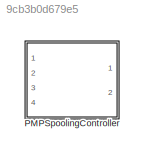
MODEL slx_9cb3b0d679e5
KIND library
CONFIG AbsTol = auto
CONFIG EnableMultiTasking = off
CONFIG FixedStep = auto
CONFIG MaxStep = auto
CONFIG MinStep = auto
CONFIG RelTol = 1e-3
CONFIG SampleTimeConstraint = Unconstrained
CONFIG SolverName = VariableStepAuto
CONFIG StartTime = 0.0
CONFIG StopTime = 10.0
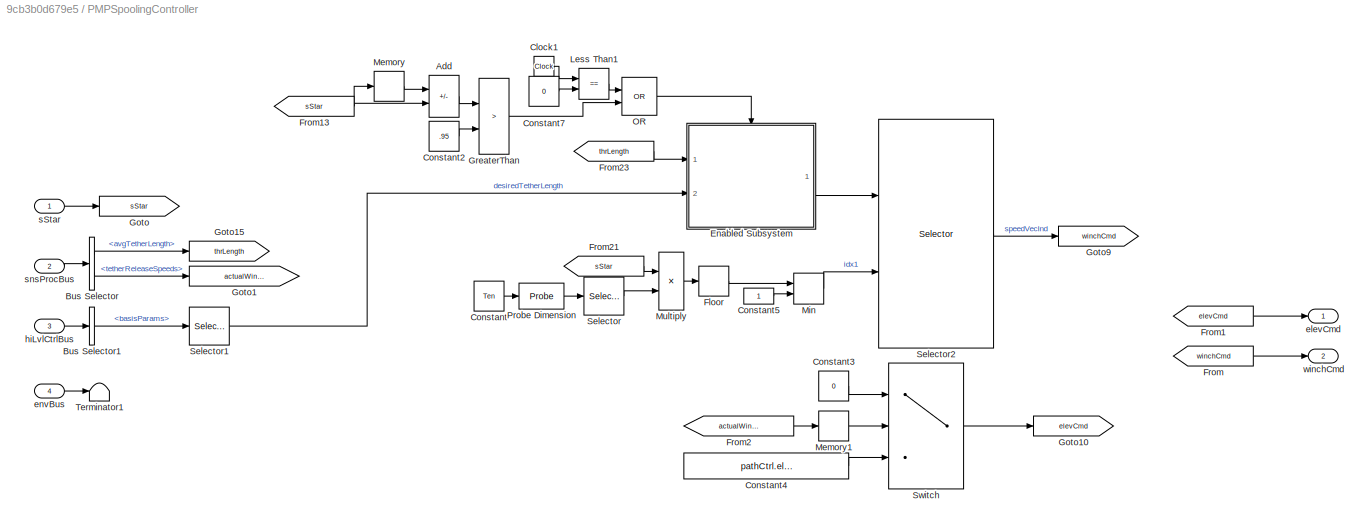
BLOCK [SubSystem] PMPSpoolingController
  Ports = [4, 2]
  RequestExecContextInheritance = off
  VariantControl = strcmpi(SPOOLINGCONTROLLER,'PMPSpoolingController')
BLOCK [Sum] PMPSpoolingController/Add
  IconShape = rectangular
  Inputs = +-
  Ports = [2, 1]
BLOCK [BusSelector] PMPSpoolingController/Bus Selector
  OutputSignals = avgTetherLength,tetherReleaseSpeeds
  Ports = [1, 2]
BLOCK [BusSelector] PMPSpoolingController/Bus Selector1
  OutputSignals = basisParams
  Ports = [1, 1]
BLOCK [Clock] PMPSpoolingController/Clock1
BLOCK [Constant] PMPSpoolingController/Constant
  Value = Ten
BLOCK [Constant] PMPSpoolingController/Constant2
  Value = .95
BLOCK [Constant] PMPSpoolingController/Constant3
  Value = 0
BLOCK [Constant] PMPSpoolingController/Constant4
  Value = pathCtrl.elevatorReelInDef.Value
BLOCK [Constant] PMPSpoolingController/Constant5
BLOCK [Constant] PMPSpoolingController/Constant7
  Value = 0
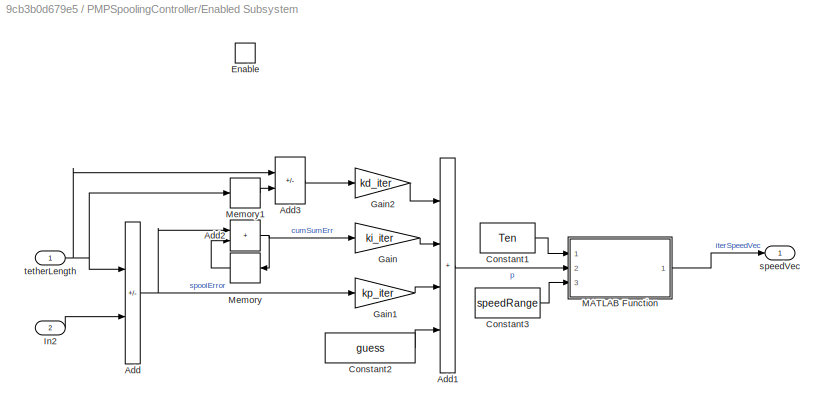
BLOCK [SubSystem] PMPSpoolingController/Enabled Subsystem
  Ports = [2, 1, 1]
  RequestExecContextInheritance = off
  TreatAsAtomicUnit = on
BLOCK [Sum] PMPSpoolingController/Enabled Subsystem/Add
  IconShape = rectangular
  Inputs = +-
  Ports = [2, 1]
BLOCK [Sum] PMPSpoolingController/Enabled Subsystem/Add1
  IconShape = rectangular
  Inputs = ++++
  Ports = [4, 1]
BLOCK [Sum] PMPSpoolingController/Enabled Subsystem/Add2
  IconShape = rectangular
  Ports = [2, 1]
BLOCK [Sum] PMPSpoolingController/Enabled Subsystem/Add3
  IconShape = rectangular
  Inputs = +-
  Ports = [2, 1]
BLOCK [Constant] PMPSpoolingController/Enabled Subsystem/Constant1
  Value = Ten
BLOCK [Constant] PMPSpoolingController/Enabled Subsystem/Constant2
  Value = guess
BLOCK [Constant] PMPSpoolingController/Enabled Subsystem/Constant3
  Value = speedRange
BLOCK [EnablePort] PMPSpoolingController/Enabled Subsystem/Enable
  Ports = []
BLOCK [Gain] PMPSpoolingController/Enabled Subsystem/Gain
  Gain = ki_iter
BLOCK [Gain] PMPSpoolingController/Enabled Subsystem/Gain1
  Gain = kp_iter
BLOCK [Gain] PMPSpoolingController/Enabled Subsystem/Gain2
  Gain = kd_iter
BLOCK [Inport] PMPSpoolingController/Enabled Subsystem/In2
  Port = 2
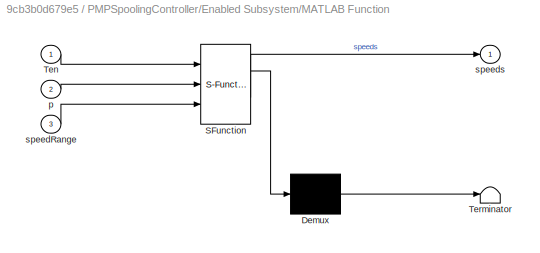
BLOCK [SubSystem] PMPSpoolingController/Enabled Subsystem/MATLAB Function
  ErrorFcn = Stateflow.Translate.translate
  PermitHierarchicalResolution = ExplicitOnly
  Ports = [3, 1]
  RequestExecContextInheritance = off
  SFBlockType = MATLAB Function
  TreatAsAtomicUnit = on
BLOCK [Demux] PMPSpoolingController/Enabled Subsystem/MATLAB Function/ Demux 
  Outputs = 1
  Ports = [1, 1]
BLOCK [S-Function] PMPSpoolingController/Enabled Subsystem/MATLAB Function/ SFunction 
  EnableBusSupport = off
  FunctionName = sf_sfun
  PortCounts = [3 2]
  Ports = [3, 2]
  SFcnIsStateOwnerBlock = off
  SFunctionDeploymentMode = off
  Tag = Stateflow S-Function 94
BLOCK [Terminator] PMPSpoolingController/Enabled Subsystem/MATLAB Function/ Terminator 
BLOCK [Inport] PMPSpoolingController/Enabled Subsystem/MATLAB Function/Ten
BLOCK [Inport] PMPSpoolingController/Enabled Subsystem/MATLAB Function/p
  Port = 2
BLOCK [Inport] PMPSpoolingController/Enabled Subsystem/MATLAB Function/speedRange
  Port = 3
BLOCK [Outport] PMPSpoolingController/Enabled Subsystem/MATLAB Function/speeds
  VectorParamsAs1DForOutWhenUnconnected = off
BLOCK [Memory] PMPSpoolingController/Enabled Subsystem/Memory
BLOCK [Memory] PMPSpoolingController/Enabled Subsystem/Memory1
BLOCK [Outport] PMPSpoolingController/Enabled Subsystem/speedVec
  VectorParamsAs1DForOutWhenUnconnected = off
BLOCK [Inport] PMPSpoolingController/Enabled Subsystem/tetherLength
BLOCK [Rounding] PMPSpoolingController/Floor
  Operator = ceil
BLOCK [From] PMPSpoolingController/From
  GotoTag = winchCmd
BLOCK [From] PMPSpoolingController/From1
  GotoTag = elevCmd
BLOCK [From] PMPSpoolingController/From13
  GotoTag = sStar
BLOCK [From] PMPSpoolingController/From2
  GotoTag = actualWinchSpeed
BLOCK [From] PMPSpoolingController/From21
  GotoTag = sStar
BLOCK [From] PMPSpoolingController/From23
  GotoTag = thrLength
BLOCK [Goto] PMPSpoolingController/Goto
  GotoTag = sStar
BLOCK [Goto] PMPSpoolingController/Goto1
  GotoTag = actualWinchSpeed
BLOCK [Goto] PMPSpoolingController/Goto10
  GotoTag = elevCmd
BLOCK [Goto] PMPSpoolingController/Goto15
  GotoTag = thrLength
BLOCK [Goto] PMPSpoolingController/Goto9
  GotoTag = winchCmd
BLOCK [RelationalOperator] PMPSpoolingController/GreaterThan
  InputSameDT = off
  Operator = >
  OutDataTypeStr = boolean
  Ports = [2, 1]
  RndMeth = Simplest
BLOCK [RelationalOperator] PMPSpoolingController/Less Than1
  InputSameDT = off
  Operator = ==
  OutDataTypeStr = boolean
  Ports = [2, 1]
  RndMeth = Simplest
BLOCK [Memory] PMPSpoolingController/Memory
  InitialCondition = pathCtrl.initPathVar.Value
BLOCK [Memory] PMPSpoolingController/Memory1
BLOCK [MinMax] PMPSpoolingController/Min
  Function = max
  Inputs = 2
  Ports = [2, 1]
BLOCK [Product] PMPSpoolingController/Multiply
  Ports = [2, 1]
BLOCK [Logic] PMPSpoolingController/OR
  AllPortsSameDT = off
  IconShape = distinctive
  Operator = OR
  OutDataTypeStr = boolean
  Ports = [2, 1]
BLOCK [Probe] PMPSpoolingController/Probe Dimension
  Ports = [1, 1]
  ProbeComplexSignal = off
  ProbeSampleTime = off
  ProbeSignalDimensions = on
  ProbeWidth = off
BLOCK [Selector] PMPSpoolingController/Selector
  IndexOptions = Index vector (dialog)
  Indices = 1
  InputPortWidth = 2
  OutputSizes = 1
  Ports = [1, 1]
BLOCK [Selector] PMPSpoolingController/Selector1
  IndexOptions = Index vector (dialog)
  Indices = 5
  OutputSizes = 1
  Ports = [1, 1]
BLOCK [Selector] PMPSpoolingController/Selector2
  IndexOptions = Index vector (port)
  Indices = [1 3]
  InputPortWidth = TenWidth
  OutputSizes = 1
  Ports = [2, 1]
BLOCK [Switch] PMPSpoolingController/Switch
  Criteria = u2 > Threshold
  InputSameDT = off
  SaturateOnIntegerOverflow = off
BLOCK [Terminator] PMPSpoolingController/Terminator1
BLOCK [Outport] PMPSpoolingController/elevCmd
  VectorParamsAs1DForOutWhenUnconnected = off
BLOCK [Inport] PMPSpoolingController/envBus
  OutDataTypeStr = Bus: envBus
  Port = 4
BLOCK [Inport] PMPSpoolingController/hiLvlCtrlBus
  OutDataTypeStr = Bus: hiLvlCtrlBus
  Port = 3
BLOCK [Inport] PMPSpoolingController/sStar 
BLOCK [Inport] PMPSpoolingController/snsProcBus
  OutDataTypeStr = Bus: sensorsProcessingBus
  Port = 2
BLOCK [Outport] PMPSpoolingController/winchCmd 
  Port = 2
  VectorParamsAs1DForOutWhenUnconnected = off
LINE PMPSpoolingController/Add:1 -> PMPSpoolingController/GreaterThan:1
LINE PMPSpoolingController/Bus Selector1:1 -> PMPSpoolingController/Selector1:1
LINE PMPSpoolingController/Bus Selector:1 -> PMPSpoolingController/Goto15:1
LINE PMPSpoolingController/Bus Selector:2 -> PMPSpoolingController/Goto1:1
LINE PMPSpoolingController/Clock1:1 -> PMPSpoolingController/Less Than1:1
LINE PMPSpoolingController/Constant2:1 -> PMPSpoolingController/GreaterThan:2
LINE PMPSpoolingController/Constant3:1 -> PMPSpoolingController/Switch:1
LINE PMPSpoolingController/Constant4:1 -> PMPSpoolingController/Switch:3
LINE PMPSpoolingController/Constant5:1 -> PMPSpoolingController/Min:2
LINE PMPSpoolingController/Constant7:1 -> PMPSpoolingController/Less Than1:2
LINE PMPSpoolingController/Constant:1 -> PMPSpoolingController/Probe Dimension:1
LINE PMPSpoolingController/Enabled Subsystem/Add1:1 -> PMPSpoolingController/Enabled Subsystem/MATLAB Function:2
NET PMPSpoolingController/Enabled Subsystem/Add2:1 -> PMPSpoolingController/Enabled Subsystem/Gain:1, PMPSpoolingController/Enabled Subsystem/Memory:1
LINE PMPSpoolingController/Enabled Subsystem/Add3:1 -> PMPSpoolingController/Enabled Subsystem/Gain2:1
NET PMPSpoolingController/Enabled Subsystem/Add:1 -> PMPSpoolingController/Enabled Subsystem/Add2:1, PMPSpoolingController/Enabled Subsystem/Gain1:1
LINE PMPSpoolingController/Enabled Subsystem/Constant1:1 -> PMPSpoolingController/Enabled Subsystem/MATLAB Function:1
LINE PMPSpoolingController/Enabled Subsystem/Constant2:1 -> PMPSpoolingController/Enabled Subsystem/Add1:4
LINE PMPSpoolingController/Enabled Subsystem/Constant3:1 -> PMPSpoolingController/Enabled Subsystem/MATLAB Function:3
LINE PMPSpoolingController/Enabled Subsystem/Gain1:1 -> PMPSpoolingController/Enabled Subsystem/Add1:3
LINE PMPSpoolingController/Enabled Subsystem/Gain2:1 -> PMPSpoolingController/Enabled Subsystem/Add1:1
LINE PMPSpoolingController/Enabled Subsystem/Gain:1 -> PMPSpoolingController/Enabled Subsystem/Add1:2
LINE PMPSpoolingController/Enabled Subsystem/In2:1 -> PMPSpoolingController/Enabled Subsystem/Add:2
LINE PMPSpoolingController/Enabled Subsystem/MATLAB Function:1 -> PMPSpoolingController/Enabled Subsystem/speedVec:1
LINE PMPSpoolingController/Enabled Subsystem/Memory1:1 -> PMPSpoolingController/Enabled Subsystem/Add3:2
LINE PMPSpoolingController/Enabled Subsystem/Memory:1 -> PMPSpoolingController/Enabled Subsystem/Add2:2
NET PMPSpoolingController/Enabled Subsystem/tetherLength:1 -> PMPSpoolingController/Enabled Subsystem/Add3:1, PMPSpoolingController/Enabled Subsystem/Add:1, PMPSpoolingController/Enabled Subsystem/Memory1:1
LINE PMPSpoolingController/Enabled Subsystem:1 -> PMPSpoolingController/Selector2:1
LINE PMPSpoolingController/Floor:1 -> PMPSpoolingController/Min:1
NET PMPSpoolingController/From13:1 -> PMPSpoolingController/Add:2, PMPSpoolingController/Memory:1
LINE PMPSpoolingController/From1:1 -> PMPSpoolingController/elevCmd:1
LINE PMPSpoolingController/From21:1 -> PMPSpoolingController/Multiply:1
LINE PMPSpoolingController/From23:1 -> PMPSpoolingController/Enabled Subsystem:1
LINE PMPSpoolingController/From2:1 -> PMPSpoolingController/Memory1:1
LINE PMPSpoolingController/From:1 -> PMPSpoolingController/winchCmd :1
LINE PMPSpoolingController/GreaterThan:1 -> PMPSpoolingController/OR:2
LINE PMPSpoolingController/Less Than1:1 -> PMPSpoolingController/OR:1
LINE PMPSpoolingController/Memory1:1 -> PMPSpoolingController/Switch:2
LINE PMPSpoolingController/Memory:1 -> PMPSpoolingController/Add:1
LINE PMPSpoolingController/Min:1 -> PMPSpoolingController/Selector2:2
LINE PMPSpoolingController/Multiply:1 -> PMPSpoolingController/Floor:1
LINE PMPSpoolingController/OR:1 -> PMPSpoolingController/Enabled Subsystem:enable
LINE PMPSpoolingController/Probe Dimension:1 -> PMPSpoolingController/Selector:1
LINE PMPSpoolingController/Selector1:1 -> PMPSpoolingController/Enabled Subsystem:2
LINE PMPSpoolingController/Selector2:1 -> PMPSpoolingController/Goto9:1
LINE PMPSpoolingController/Selector:1 -> PMPSpoolingController/Multiply:2
LINE PMPSpoolingController/Switch:1 -> PMPSpoolingController/Goto10:1
LINE PMPSpoolingController/envBus:1 -> PMPSpoolingController/Terminator1:1
LINE PMPSpoolingController/hiLvlCtrlBus:1 -> PMPSpoolingController/Bus Selector1:1
LINE PMPSpoolingController/sStar :1 -> PMPSpoolingController/Goto:1
LINE PMPSpoolingController/snsProcBus:1 -> PMPSpoolingController/Bus Selector:1
note: NET lines group one-source signal fan-out (src -> all destinations, sorted); 1:1 wires keep LINE
CHART PMPSpoolingController/Enabled
Subsystem/MATLAB Function states=1 transitions=1
  STATE_LABEL 'eML_blk_kernel()'
  STATE_LABEL 'SCRIPT:\nfunction speeds = fcn(Ten, p, speedRange)\nxopts=linspace(speedRange(1),speedRange(2),max(size(Ten)));\nn=1000;\n% speeds = zeros(2*max(size(Ten)),1);\nspeeds = zeros(n,1);\n% for ii = 1:2*max(size(Ten))\nfor ii = 1:n\n    iidbl=(1000/n)*ii;\n    %     hamil = @(x) (p-Ten(ii,xopts==x)).*x;\n    perc=iidbl-floor(iidbl);\n    currTen=((1-perc)*Ten(max(floor(iidbl),1),:)) + (perc*Ten(ceil(iidbl),:));\n ...<+516ch>'
CHART  states=0 transitions=0
